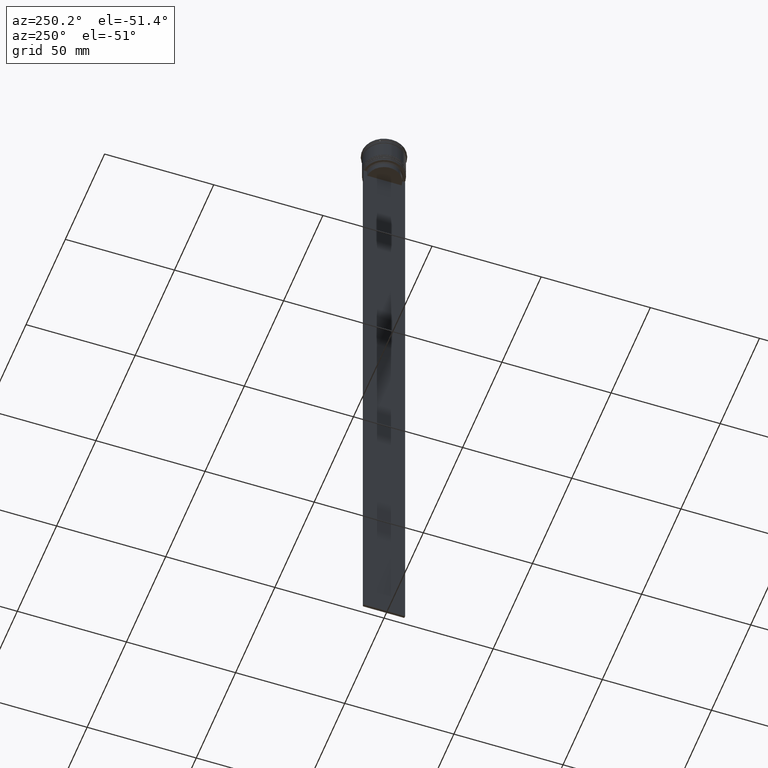
[diagram: clean part render]
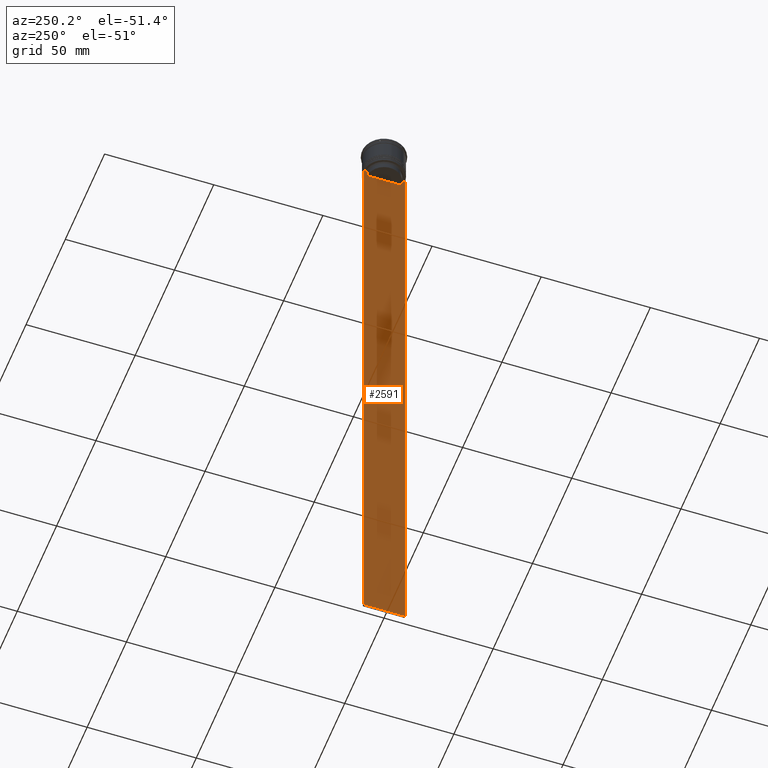
[diagram: same view with one face highlighted and labeled with its STEP entity id]
A machine part, auxiliary view. The second image highlights one B-rep face of the part: STEP entity #2591.
In plain terms, the highlighted planar face has unit normal (-1, 0, 0).
Its self-contained STEP definition (entity closure, byte-faithful):
#9 = EDGE_CURVE ( 'NONE', #2140, #1608, #325, .T. ) ;
#15 = CARTESIAN_POINT ( 'NONE',  ( -0.5000000000000000000, -7.884161337770803080, -17.00000000000000000 ) ) ;
#33 = CARTESIAN_POINT ( 'NONE',  ( -0.5000000000000000000, -8.385105843100605583, -14.00000000000000178 ) ) ;
#35 = DIRECTION ( 'NONE',  ( 0.000000000000000000, -1.000000000000000000, 0.000000000000000000 ) ) ;
#71 = LINE ( 'NONE', #1889, #921 ) ;
#75 = EDGE_CURVE ( 'NONE', #1138, #1017, #2259, .T. ) ;
#121 = CARTESIAN_POINT ( 'NONE',  ( -0.5000000000000000000, 8.218133718559618828, -14.16667606394327983 ) ) ;
#129 = CARTESIAN_POINT ( 'NONE',  ( -0.5000000000000000000, -7.884161337770803080, 0.000000000000000000 ) ) ;
#194 = VERTEX_POINT ( 'NONE', #2217 ) ;
#195 = CARTESIAN_POINT ( 'NONE',  ( -0.5000000000000000000, -9.500000000000001776, 5.026297590440445440 ) ) ;
#196 = ORIENTED_EDGE ( 'NONE', *, *, #1290, .F. ) ;
#209 = DIRECTION ( 'NONE',  ( 0.000000000000000000, -1.000000000000000000, 0.000000000000000000 ) ) ;
#220 = EDGE_CURVE ( 'NONE', #2150, #1017, #342, .T. ) ;
#257 = VECTOR ( 'NONE', #209, 1000.000000000000000 ) ;
#259 = CARTESIAN_POINT ( 'NONE',  ( -0.5000000000000000000, -8.385105843100605583, -14.00000000000000178 ) ) ;
#325 = LINE ( 'NONE', #2621, #621 ) ;
#342 = LINE ( 'NONE', #1167, #2599 ) ;
#376 = ORIENTED_EDGE ( 'NONE', *, *, #75, .F. ) ;
#392 = VERTEX_POINT ( 'NONE', #259 ) ;
#394 = VECTOR ( 'NONE', #613, 1000.000000000000000 ) ;
#432 = DIRECTION ( 'NONE',  ( 0.000000000000000000, 0.000000000000000000, -1.000000000000000000 ) ) ;
#433 = CARTESIAN_POINT ( 'NONE',  ( -0.5000000000000000000, -9.500000000000001776, -314.0000000000000000 ) ) ;
#466 = CARTESIAN_POINT ( 'NONE',  ( -0.5000000000000000000, -7.884161337770803080, -14.50000000000000000 ) ) ;
#501 = DIRECTION ( 'NONE',  ( -0.000000000000000000, -0.000000000000000000, 1.000000000000000000 ) ) ;
#539 = EDGE_CURVE ( 'NONE', #1608, #827, #2661, .T. ) ;
#594 = CARTESIAN_POINT ( 'NONE',  ( -0.5000000000000000000, -9.500000000000001776, -314.0000000000000000 ) ) ;
#606 = CARTESIAN_POINT ( 'NONE',  ( -0.5000000000000000000, 7.899999999999994138, -17.00000000000000000 ) ) ;
#613 = DIRECTION ( 'NONE',  ( 0.000000000000000000, 0.000000000000000000, -1.000000000000000000 ) ) ;
#621 = VECTOR ( 'NONE', #1135, 1000.000000000000000 ) ;
#648 = VERTEX_POINT ( 'NONE', #1845 ) ;
#667 = CARTESIAN_POINT ( 'NONE',  ( -0.5000000000000000000, -9.500000000000001776, -14.00000000000000178 ) ) ;
#677 = ORIENTED_EDGE ( 'NONE', *, *, #220, .T. ) ;
#726 = ORIENTED_EDGE ( 'NONE', *, *, #539, .F. ) ;
#758 = DIRECTION ( 'NONE',  ( 0.000000000000000000, 0.000000000000000000, 1.000000000000000000 ) ) ;
#764 = ORIENTED_EDGE ( 'NONE', *, *, #856, .F. ) ;
#827 = VERTEX_POINT ( 'NONE', #1449 ) ;
#836 = VECTOR ( 'NONE', #1371, 1000.000000000000000 ) ;
#856 = EDGE_CURVE ( 'NONE', #827, #1497, #1632, .T. ) ;
#873 = LINE ( 'NONE', #1696, #2216 ) ;
#880 = VERTEX_POINT ( 'NONE', #15 ) ;
#893 = DIRECTION ( 'NONE',  ( 0.000000000000000000, -1.000000000000000000, 0.000000000000000000 ) ) ;
#921 = VECTOR ( 'NONE', #35, 1000.000000000000000 ) ;
#925 = AXIS2_PLACEMENT_3D ( 'NONE', #2001, #1360, #758 ) ;
#939 = EDGE_CURVE ( 'NONE', #648, #2073, #873, .T. ) ;
#943 = PLANE ( 'NONE',  #925 ) ;
#951 = LINE ( 'NONE', #1772, #836 ) ;
#963 = CARTESIAN_POINT ( 'NONE',  ( -0.5000000000000000000, 8.051152811434374001, -14.33334332653219079 ) ) ;
#1001 = LINE ( 'NONE', #195, #1008 ) ;
#1008 = VECTOR ( 'NONE', #2458, 1000.000000000000000 ) ;
#1010 = B_SPLINE_CURVE_WITH_KNOTS ( 'NONE', 3,
 ( #466, #1072, #1909, #33 ),
 .UNSPECIFIED., .F., .F.,
 ( 4, 4 ),
 ( 0.03673372442973153046, 0.03744389749832059688 ),
 .UNSPECIFIED. ) ;
#1017 = VERTEX_POINT ( 'NONE', #1226 ) ;
#1072 = CARTESIAN_POINT ( 'NONE',  ( -0.5000000000000000000, -8.051152795888546265, -14.33334334204685057 ) ) ;
#1135 = DIRECTION ( 'NONE',  ( 0.000000000000000000, -1.000000000000000000, 0.000000000000000000 ) ) ;
#1138 = VERTEX_POINT ( 'NONE', #433 ) ;
#1167 = CARTESIAN_POINT ( 'NONE',  ( -0.5000000000000000000, 9.499999999999998224, 5.026297590440445440 ) ) ;
#1206 = EDGE_CURVE ( 'NONE', #392, #648, #71, .T. ) ;
#1226 = CARTESIAN_POINT ( 'NONE',  ( -0.5000000000000000000, 9.499999999999998224, -314.0000000000000000 ) ) ;
#1268 = ORIENTED_EDGE ( 'NONE', *, *, #939, .F. ) ;
#1290 = EDGE_CURVE ( 'NONE', #880, #194, #2388, .T. ) ;
#1294 = ORIENTED_EDGE ( 'NONE', *, *, #1473, .F. ) ;
#1309 = EDGE_LOOP ( 'NONE', ( #726, #2192, #2637, #677, #376, #1294, #1268, #2670, #1774, #196, #1925, #764 ) ) ;
#1360 = DIRECTION ( 'NONE',  ( -1.000000000000000000, 0.000000000000000000, 0.000000000000000000 ) ) ;
#1370 = CARTESIAN_POINT ( 'NONE',  ( -0.5000000000000000000, 7.884161337770803080, -14.50000000000000000 ) ) ;
#1371 = DIRECTION ( 'NONE',  ( 0.000000000000000000, -1.000000000000000000, 0.000000000000000000 ) ) ;
#1378 = CARTESIAN_POINT ( 'NONE',  ( -0.5000000000000000000, 9.386692708297204035, -14.00000000000000178 ) ) ;
#1449 = CARTESIAN_POINT ( 'NONE',  ( -0.5000000000000000000, 7.884161337770803080, -14.50000000000000000 ) ) ;
#1473 = EDGE_CURVE ( 'NONE', #2073, #1138, #1001, .T. ) ;
#1497 = VERTEX_POINT ( 'NONE', #2446 ) ;
#1560 = VECTOR ( 'NONE', #1628, 1000.000000000000000 ) ;
#1608 = VERTEX_POINT ( 'NONE', #2329 ) ;
#1628 = DIRECTION ( 'NONE',  ( 0.000000000000000000, 1.000000000000000000, 0.000000000000000000 ) ) ;
#1632 = LINE ( 'NONE', #2467, #394 ) ;
#1637 = EDGE_CURVE ( 'NONE', #194, #392, #1010, .T. ) ;
#1696 = CARTESIAN_POINT ( 'NONE',  ( -0.5000000000000000000, -9.500000000000001776, -14.00000000000000178 ) ) ;
#1749 = FACE_OUTER_BOUND ( 'NONE', #1309, .T. ) ;
#1772 = CARTESIAN_POINT ( 'NONE',  ( -0.5000000000000000000, -9.500000000000001776, -14.00000000000000178 ) ) ;
#1774 = ORIENTED_EDGE ( 'NONE', *, *, #1637, .F. ) ;
#1809 = EDGE_CURVE ( 'NONE', #2150, #2140, #951, .T. ) ;
#1845 = CARTESIAN_POINT ( 'NONE',  ( -0.5000000000000000000, -9.386692708297204035, -14.00000000000000178 ) ) ;
#1889 = CARTESIAN_POINT ( 'NONE',  ( -0.5000000000000000000, -9.500000000000001776, -14.00000000000000178 ) ) ;
#1909 = CARTESIAN_POINT ( 'NONE',  ( -0.5000000000000000000, -8.218133703942523738, -14.16667607853445787 ) ) ;
#1925 = ORIENTED_EDGE ( 'NONE', *, *, #2377, .F. ) ;
#1961 = VECTOR ( 'NONE', #501, 1000.000000000000000 ) ;
#1980 = CARTESIAN_POINT ( 'NONE',  ( -0.5000000000000000000, 8.385105843100605583, -14.00000000000000178 ) ) ;
#2001 = CARTESIAN_POINT ( 'NONE',  ( -0.5000000000000000000, -9.500000000000001776, 5.026297590440445440 ) ) ;
#2073 = VERTEX_POINT ( 'NONE', #667 ) ;
#2140 = VERTEX_POINT ( 'NONE', #1378 ) ;
#2150 = VERTEX_POINT ( 'NONE', #2184 ) ;
#2184 = CARTESIAN_POINT ( 'NONE',  ( -0.5000000000000000000, 9.499999999999994671, -14.00000000000000178 ) ) ;
#2192 = ORIENTED_EDGE ( 'NONE', *, *, #9, .F. ) ;
#2216 = VECTOR ( 'NONE', #893, 1000.000000000000000 ) ;
#2217 = CARTESIAN_POINT ( 'NONE',  ( -0.5000000000000000000, -7.884161337770803080, -14.50000000000000000 ) ) ;
#2259 = LINE ( 'NONE', #594, #1560 ) ;
#2329 = CARTESIAN_POINT ( 'NONE',  ( -0.5000000000000000000, 8.385105843100605583, -14.00000000000000178 ) ) ;
#2377 = EDGE_CURVE ( 'NONE', #1497, #880, #2461, .T. ) ;
#2388 = LINE ( 'NONE', #129, #1961 ) ;
#2446 = CARTESIAN_POINT ( 'NONE',  ( -0.5000000000000000000, 7.884161337770803080, -17.00000000000000000 ) ) ;
#2458 = DIRECTION ( 'NONE',  ( 0.000000000000000000, 0.000000000000000000, -1.000000000000000000 ) ) ;
#2461 = LINE ( 'NONE', #606, #257 ) ;
#2467 = CARTESIAN_POINT ( 'NONE',  ( -0.5000000000000000000, 7.884161337770803080, 0.000000000000000000 ) ) ;
#2591 = ADVANCED_FACE ( 'NONE', ( #1749 ), #943, .T. ) ;
#2599 = VECTOR ( 'NONE', #432, 1000.000000000000000 ) ;
#2621 = CARTESIAN_POINT ( 'NONE',  ( -0.5000000000000000000, -9.500000000000001776, -14.00000000000000178 ) ) ;
#2637 = ORIENTED_EDGE ( 'NONE', *, *, #1809, .F. ) ;
#2661 = B_SPLINE_CURVE_WITH_KNOTS ( 'NONE', 3,
 ( #1980, #121, #963, #1370 ),
 .UNSPECIFIED., .F., .F.,
 ( 4, 4 ),
 ( 0.01426761478740281447, 0.01497538974438914448 ),
 .UNSPECIFIED. ) ;
#2670 = ORIENTED_EDGE ( 'NONE', *, *, #1206, .F. ) ;